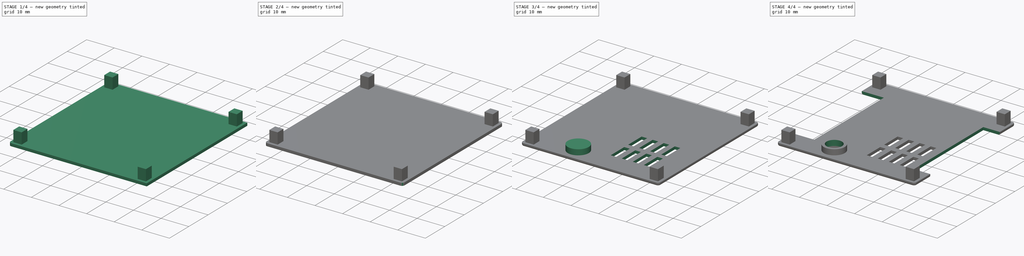
[diagram: build sequence overview — one tinted view per stage of 4, left to right]
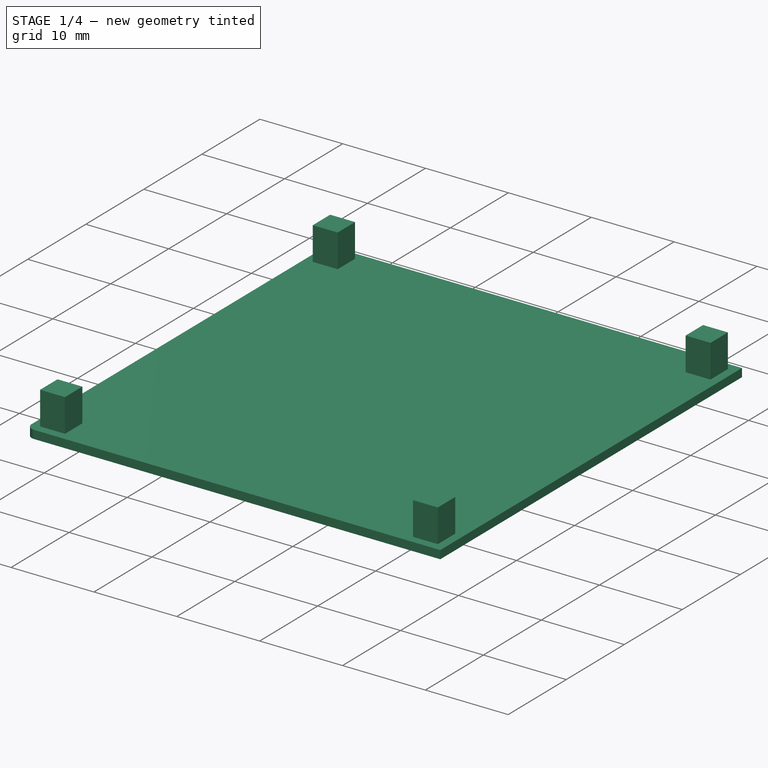
[diagram: stage 1 of 4 — iso view after this stage's code; geometry added in this stage tinted green]
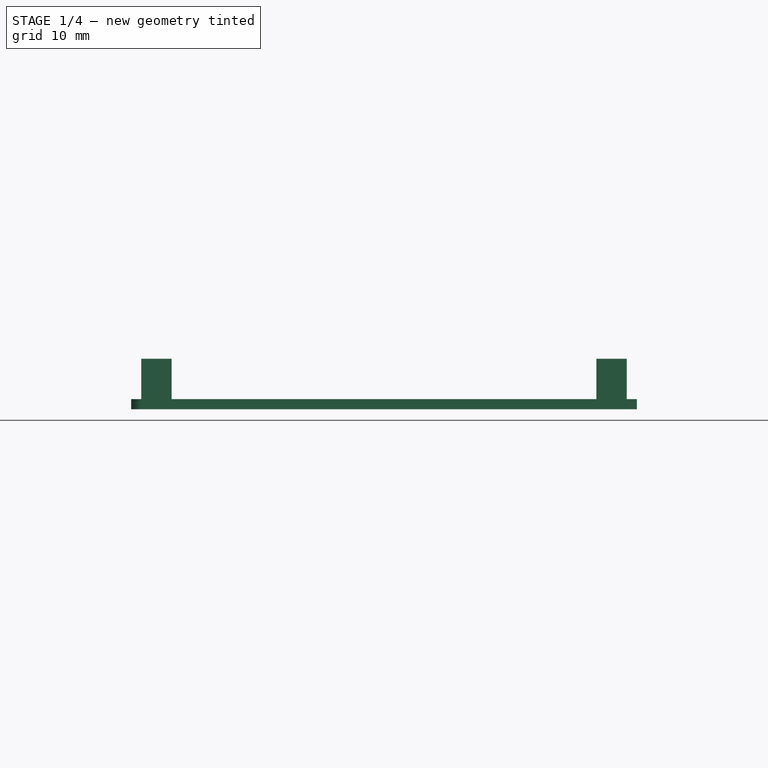
[diagram: stage 1 of 4 — front view after this stage's code; geometry added in this stage tinted green]
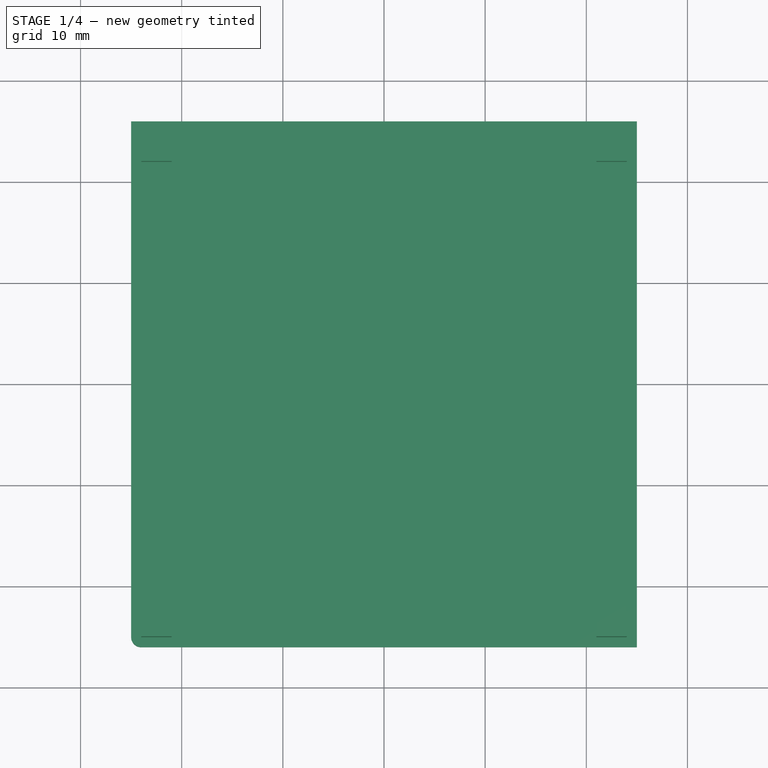
[diagram: stage 1 of 4 — top view after this stage's code; geometry added in this stage tinted green]
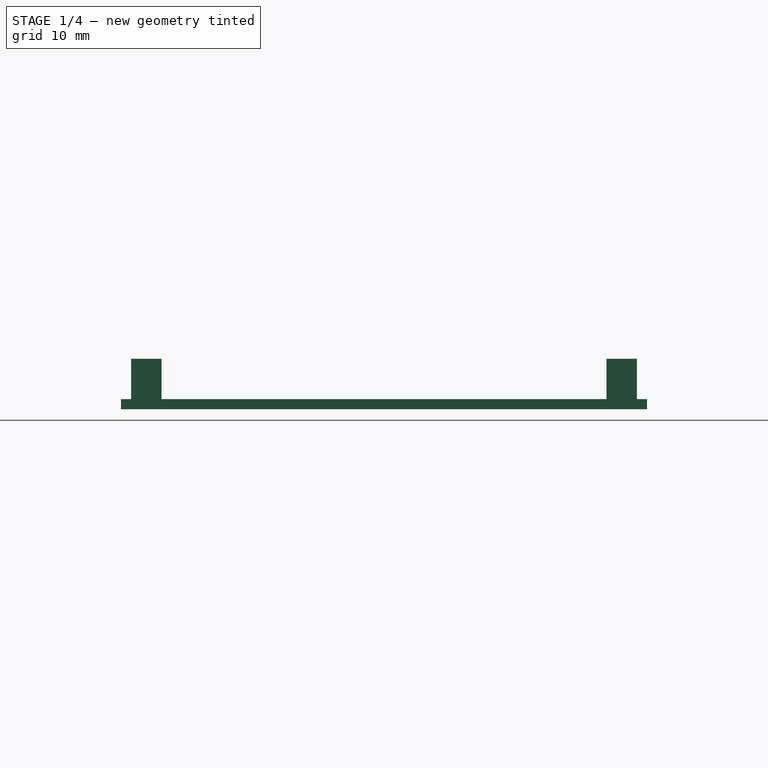
[diagram: stage 1 of 4 — right view after this stage's code; geometry added in this stage tinted green]
FCSTD DOCUMENT  (FreeCAD 0.18R16117 (Git))
Label: Orange Pi Zero Top
License: All rights reserved
LicenseURL: http://en.wikipedia.org/wiki/All_rights_reserved
objects: Sketcher::SketchObject×8, PartDesign::Fillet×5, PartDesign::Pocket×5, PartDesign::Pad×3, PartDesign::Body×1
note: 30 computed .brp shape members not serialized (recipe doc carries the construction recipe); baked Part::Feature solids carry a one-line shape summary decoded from their .brp

FEATURE [Sketcher::SketchObject] Sketch
  MapMode = 5
  Support = -> [XY_Plane]
  sketch-geometry (4):
    g0: LineSegment StartX=-25 StartY=26 StartZ=0 EndX=25 EndY=26 EndZ=0
    g1: LineSegment StartX=25 StartY=26 StartZ=0 EndX=25 EndY=-26 EndZ=0
    g2: LineSegment StartX=25 StartY=-26 StartZ=0 EndX=-25 EndY=-26 EndZ=0
    g3: LineSegment StartX=-25 StartY=-26 StartZ=0 EndX=-25 EndY=26 EndZ=0
  constraints (12):
    c: Coincident(g0,g1)
    c: Coincident(g1,g2)
    c: Coincident(g2,g3)
    c: Coincident(g3,g0)
    c: Horizontal(g0)
    c: Horizontal(g2)
    c: Vertical(g1)
    c: Vertical(g3)
    c: Distance(g0) = 50
    c: Distance(g3) = 52
    c: DistanceX(g2,g-1) = 25
    c: DistanceY(g-1,g0) = 26
FEATURE [PartDesign::Pad] Pad
  Length = 1
  Length2 = 100
  Profile = -> Sketch
  Type = 0
FEATURE [Sketcher::SketchObject] Sketch001
  ExternalGeometry = -> [Pad]
  MapMode = 5
  Placement = pos=(0,0,1) rot=(0,0,1;0rad)
  Support = -> [Pad]
  sketch-geometry (16):
    g0: LineSegment StartX=-24 StartY=25 StartZ=0 EndX=-21 EndY=25 EndZ=0
    g1: LineSegment StartX=-21 StartY=25 StartZ=0 EndX=-21 EndY=22 EndZ=0
    g2: LineSegment StartX=-21 StartY=22 StartZ=0 EndX=-24 EndY=22 EndZ=0
    g3: LineSegment StartX=-24 StartY=22 StartZ=0 EndX=-24 EndY=25 EndZ=0
    g4: LineSegment StartX=21 StartY=25 StartZ=0 EndX=24 EndY=25 EndZ=0
    g5: LineSegment StartX=24 StartY=25 StartZ=0 EndX=24 EndY=22 EndZ=0
    g6: LineSegment StartX=24 StartY=22 StartZ=0 EndX=21 EndY=22 EndZ=0
    g7: LineSegment StartX=21 StartY=22 StartZ=0 EndX=21 EndY=25 EndZ=0
    g8: LineSegment StartX=-24 StartY=-22 StartZ=0 EndX=-21 EndY=-22 EndZ=0
    g9: LineSegment StartX=-21 StartY=-22 StartZ=0 EndX=-21 EndY=-25 EndZ=0
    g10: LineSegment StartX=-21 StartY=-25 StartZ=0 EndX=-24 EndY=-25 EndZ=0
    g11: LineSegment StartX=-24 StartY=-25 StartZ=0 EndX=-24 EndY=-22 EndZ=0
    g12: LineSegment StartX=21 StartY=-22 StartZ=0 EndX=24 EndY=-22 EndZ=0
    g13: LineSegment StartX=24 StartY=-22 StartZ=0 EndX=24 EndY=-25 EndZ=0
    g14: LineSegment StartX=24 StartY=-25 StartZ=0 EndX=21 EndY=-25 EndZ=0
    g15: LineSegment StartX=21 StartY=-25 StartZ=0 EndX=21 EndY=-22 EndZ=0
  constraints (48):
    c: Coincident(g0,g1)
    c: Coincident(g1,g2)
    c: Coincident(g2,g3)
    c: Coincident(g3,g0)
    c: Horizontal(g0)
    c: Horizontal(g2)
    c: Vertical(g1)
    c: Vertical(g3)
    c: Distance(g0) = 3
    c: Distance(g3) = 3
    c: DistanceX(g-4,g0) = 1
    c: DistanceY(g0,g-4) = 1
    c: Coincident(g4,g5)
    c: Coincident(g5,g6)
    c: Coincident(g6,g7)
    c: Coincident(g7,g4)
    c: Horizontal(g4)
    c: Horizontal(g6)
    c: Vertical(g5)
    c: Vertical(g7)
    c: Distance(g4) = 3
    c: Distance(g7) = 3
    c: DistanceX(g4,g-5) = 1
    c: DistanceY(g4,g-5) = 1
    c: Coincident(g8,g9)
    c: Coincident(g9,g10)
    c: Coincident(g10,g11)
    c: Coincident(g11,g8)
    c: Horizontal(g8)
    c: Horizontal(g10)
    c: Vertical(g9)
    c: Vertical(g11)
    c: Distance(g8) = 3
    c: Distance(g11) = 3
    c: DistanceX(g-6,g10) = 1
    c: DistanceY(g-6,g10) = 1
    c: Coincident(g12,g13)
    c: Coincident(g13,g14)
    c: Coincident(g14,g15)
    c: Coincident(g15,g12)
    c: Horizontal(g12)
    c: Horizontal(g14)
    c: Vertical(g13)
    c: Vertical(g15)
    c: Distance(g12) = 3
    c: Distance(g15) = 3
    c: DistanceX(g13,g-6) = 1
    c: DistanceY(g-6,g13) = 1
FEATURE [PartDesign::Pad] Pad001
  BaseFeature = -> Pad
  Length = 4
  Length2 = 100
  Profile = -> Sketch001
  Type = 0
FEATURE [PartDesign::Fillet] Fillet
  Base = -> Pad001 [Edge5]
  BaseFeature = -> Pad001
  Radius = 1
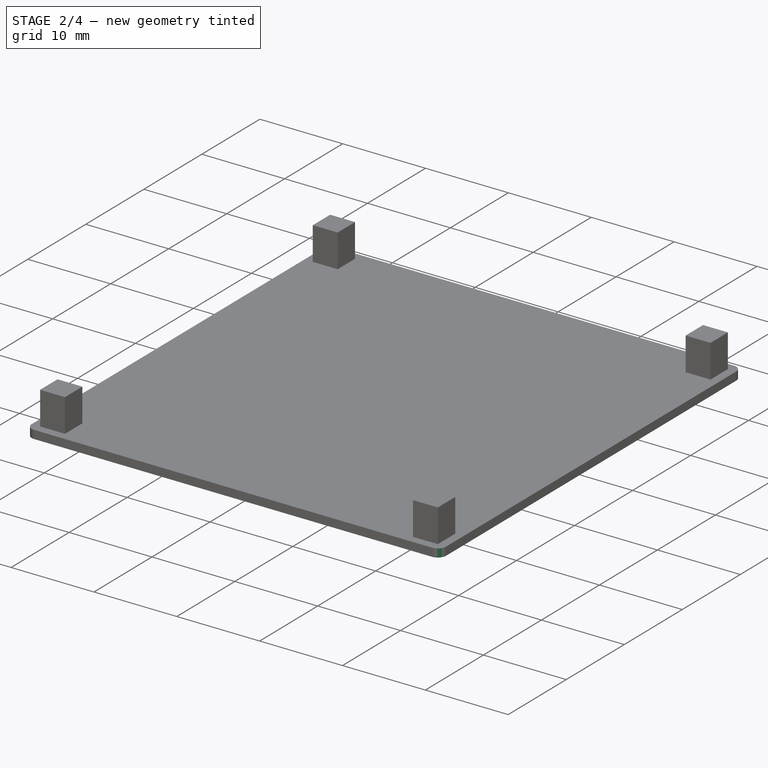
[diagram: stage 2 of 4 — iso view after this stage's code; geometry added in this stage tinted green]
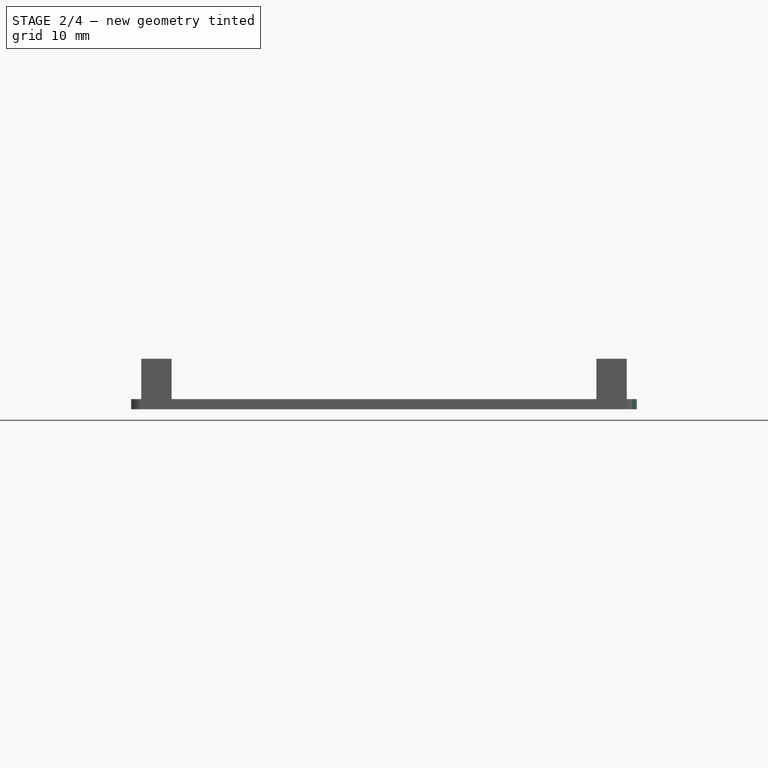
[diagram: stage 2 of 4 — front view after this stage's code; geometry added in this stage tinted green]
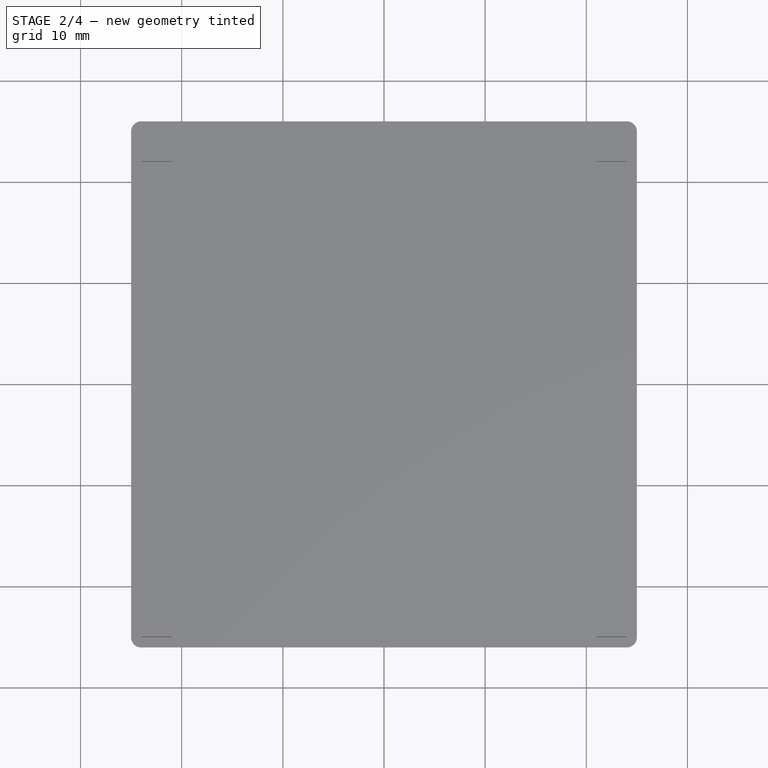
[diagram: stage 2 of 4 — top view after this stage's code; geometry added in this stage tinted green]
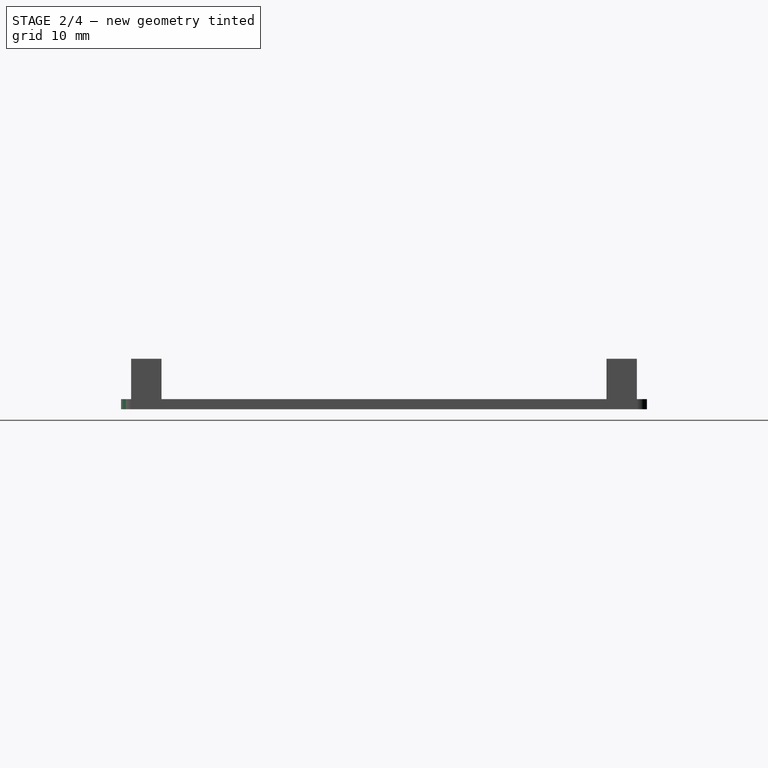
[diagram: stage 2 of 4 — right view after this stage's code; geometry added in this stage tinted green]
FEATURE [PartDesign::Fillet] Fillet001
  Base = -> Fillet [Edge31]
  BaseFeature = -> Fillet
  Radius = 1
FEATURE [PartDesign::Fillet] Fillet002
  Base = -> Fillet001 [Edge16]
  BaseFeature = -> Fillet001
  Radius = 1
FEATURE [PartDesign::Fillet] Fillet003
  Base = -> Fillet002 [Edge15]
  BaseFeature = -> Fillet002
  Radius = 1
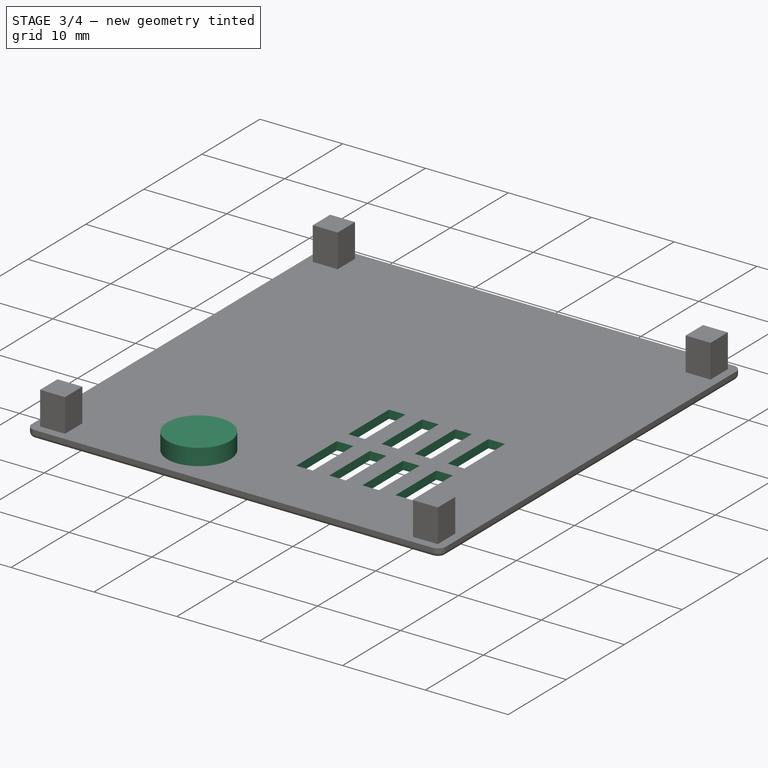
[diagram: stage 3 of 4 — iso view after this stage's code; geometry added in this stage tinted green]
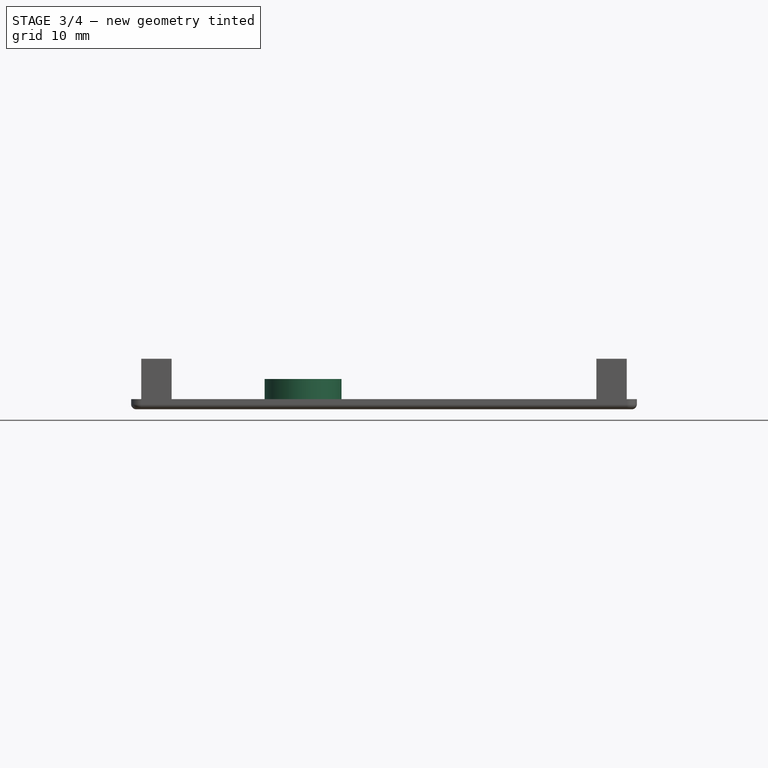
[diagram: stage 3 of 4 — front view after this stage's code; geometry added in this stage tinted green]
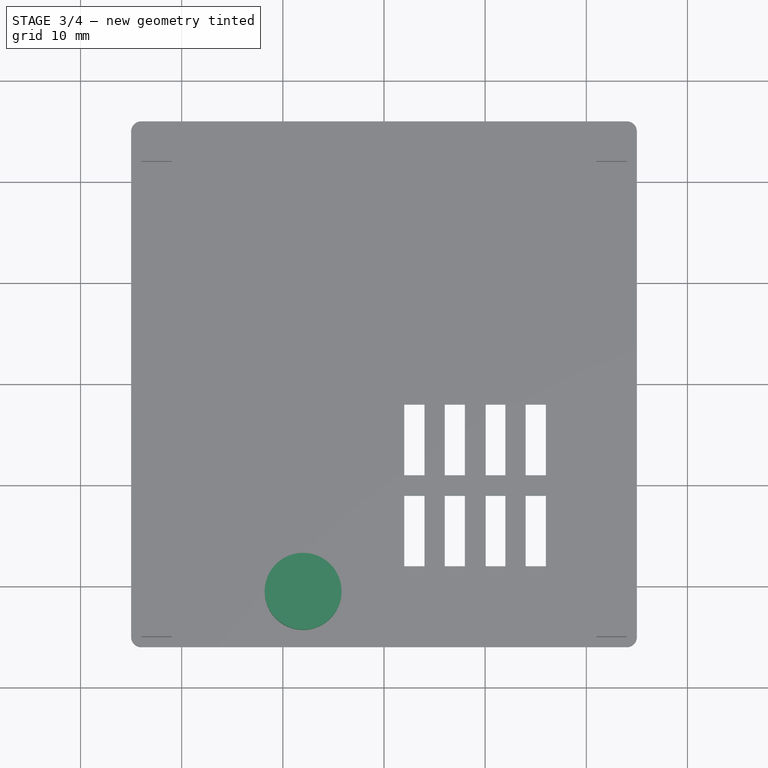
[diagram: stage 3 of 4 — top view after this stage's code; geometry added in this stage tinted green]
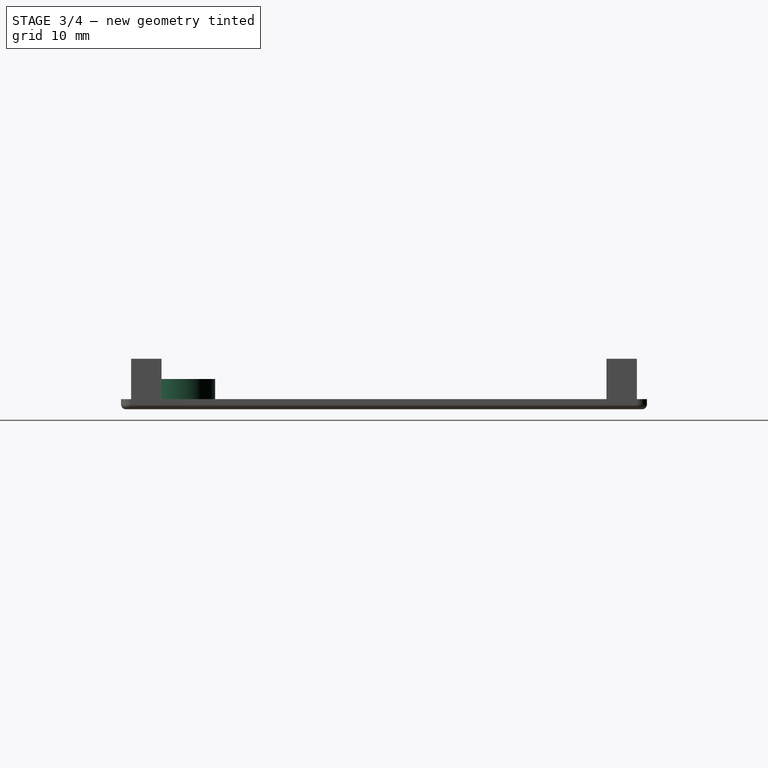
[diagram: stage 3 of 4 — right view after this stage's code; geometry added in this stage tinted green]
FEATURE [Sketcher::SketchObject] Sketch002
  ExternalGeometry = -> [Fillet003]
  MapMode = 5
  Placement = pos=(0,0,0) rot=(1,0,0;3.14159rad)
  Support = -> [Fillet003]
  sketch-geometry (1):
    g0: Circle CenterX=-8 CenterY=20.5 CenterZ=0 NormalX=0 NormalY=0 NormalZ=1 AngleXU=0 Radius=2.75
  constraints (3):
    c: DistanceX(g-3,g0) = 17
    c: Diameter(g0) = 5.5
    c: DistanceY(g0,g-4) = 5.5
FEATURE [PartDesign::Pocket] Pocket
  BaseFeature = -> Fillet003
  Length = 1
  Length2 = 100
  Profile = -> Sketch002
  Type = 0
FEATURE [Sketcher::SketchObject] Sketch003
  ExternalGeometry = -> [Pocket]
  MapMode = 5
  Placement = pos=(0,0,1) rot=(0,0,1;0rad)
  Support = -> [Pocket]
  sketch-geometry (32):
    g0: LineSegment StartX=14 StartY=-11 StartZ=0 EndX=16 EndY=-11 EndZ=0
    g1: LineSegment StartX=16 StartY=-11 StartZ=0 EndX=16 EndY=-18 EndZ=0
    g2: LineSegment StartX=16 StartY=-18 StartZ=0 EndX=14 EndY=-18 EndZ=0
    g3: LineSegment StartX=14 StartY=-18 StartZ=0 EndX=14 EndY=-11 EndZ=0
    g4: LineSegment StartX=14 StartY=-2 StartZ=0 EndX=16 EndY=-2 EndZ=0
    g5: LineSegment StartX=16 StartY=-2 StartZ=0 EndX=16 EndY=-9 EndZ=0
    g6: LineSegment StartX=16 StartY=-9 StartZ=0 EndX=14 EndY=-9 EndZ=0
    g7: LineSegment StartX=14 StartY=-9 StartZ=0 EndX=14 EndY=-2 EndZ=0
    g8: LineSegment StartX=10 StartY=-2 StartZ=0 EndX=12 EndY=-2 EndZ=0
    g9: LineSegment StartX=12 StartY=-2 StartZ=0 EndX=12 EndY=-9 EndZ=0
    g10: LineSegment StartX=12 StartY=-9 StartZ=0 EndX=10 EndY=-9 EndZ=0
    g11: LineSegment StartX=10 StartY=-9 StartZ=0 EndX=10 EndY=-2 EndZ=0
    g12: LineSegment StartX=10 StartY=-11 StartZ=0 EndX=12 EndY=-11 EndZ=0
    g13: LineSegment StartX=12 StartY=-11 StartZ=0 EndX=12 EndY=-18 EndZ=0
    g14: LineSegment StartX=12 StartY=-18 StartZ=0 EndX=10 EndY=-18 EndZ=0
    g15: LineSegment StartX=10 StartY=-18 StartZ=0 EndX=10 EndY=-11 EndZ=0
    g16: LineSegment StartX=6 StartY=-2 StartZ=0 EndX=8 EndY=-2 EndZ=0
    g17: LineSegment StartX=8 StartY=-2 StartZ=0 EndX=8 EndY=-9 EndZ=0
    g18: LineSegment StartX=8 StartY=-9 StartZ=0 EndX=6 EndY=-9 EndZ=0
    g19: LineSegment StartX=6 StartY=-9 StartZ=0 EndX=6 EndY=-2 EndZ=0
    g20: LineSegment StartX=6 StartY=-11 StartZ=0 EndX=8 EndY=-11 EndZ=0
    g21: LineSegment StartX=8 StartY=-11 StartZ=0 EndX=8 EndY=-18 EndZ=0
    g22: LineSegment StartX=8 StartY=-18 StartZ=0 EndX=6 EndY=-18 EndZ=0
    g23: LineSegment StartX=6 StartY=-18 StartZ=0 EndX=6 EndY=-11 EndZ=0
    g24: LineSegment StartX=2 StartY=-2 StartZ=0 EndX=4 EndY=-2 EndZ=0
    g25: LineSegment StartX=4 StartY=-2 StartZ=0 EndX=4 EndY=-9 EndZ=0
    g26: LineSegment StartX=4 StartY=-9 StartZ=0 EndX=2 EndY=-9 EndZ=0
    g27: LineSegment StartX=2 StartY=-9 StartZ=0 EndX=2 EndY=-2 EndZ=0
    g28: LineSegment StartX=2 StartY=-11 StartZ=0 EndX=4 EndY=-11 EndZ=0
    g29: LineSegment StartX=4 StartY=-11 StartZ=0 EndX=4 EndY=-18 EndZ=0
    g30: LineSegment StartX=4 StartY=-18 StartZ=0 EndX=2 EndY=-18 EndZ=0
    g31: LineSegment StartX=2 StartY=-18 StartZ=0 EndX=2 EndY=-11 EndZ=0
  constraints (96):
    c: Coincident(g0,g1)
    c: Coincident(g1,g2)
    c: Coincident(g2,g3)
    c: Coincident(g3,g0)
    c: Horizontal(g0)
    c: Horizontal(g2)
    c: Vertical(g1)
    c: Vertical(g3)
    c: DistanceY(g-4,g1) = 8
    c: DistanceX(g1,g-3) = 9
    c: DistanceY(g1,g1) = 7
    c: DistanceX(g0,g0) = 2
    c: Coincident(g4,g5)
    c: Coincident(g5,g6)
    c: Coincident(g6,g7)
    c: Coincident(g7,g4)
    c: Horizontal(g4)
    c: Horizontal(g6)
    c: Vertical(g5)
    c: Vertical(g7)
    c: Equal(g1,g5)
    c: Equal(g4,g0)
    c: DistanceX(g5,g0) = 0
    c: DistanceY(g0,g5) = 2
    c: Coincident(g8,g9)
    c: Coincident(g9,g10)
    c: Coincident(g10,g11)
    c: Coincident(g11,g8)
    c: Horizontal(g8)
    c: Horizontal(g10)
    c: Vertical(g9)
    c: Vertical(g11)
    c: Coincident(g12,g13)
    c: Coincident(g13,g14)
    c: Coincident(g14,g15)
    c: Coincident(g15,g12)
    c: Horizontal(g12)
    c: Horizontal(g14)
    c: Vertical(g13)
    c: Vertical(g15)
    c: Coincident(g16,g17)
    c: Coincident(g17,g18)
    c: Coincident(g18,g19)
    c: Coincident(g19,g16)
    c: Horizontal(g16)
    c: Horizontal(g18)
    c: Vertical(g17)
    c: Vertical(g19)
    c: Coincident(g20,g21)
    c: Coincident(g21,g22)
    c: Coincident(g22,g23)
    c: Coincident(g23,g20)
    c: Horizontal(g20)
    c: Horizontal(g22)
    c: Vertical(g21)
    c: Vertical(g23)
    c: Coincident(g24,g25)
    c: Coincident(g25,g26)
    c: Coincident(g26,g27)
    c: Coincident(g27,g24)
    c: Horizontal(g24)
    c: Horizontal(g26)
    c: Vertical(g25)
    c: Vertical(g27)
    c: Coincident(g28,g29)
    c: Coincident(g29,g30)
    c: Coincident(g30,g31)
    c: Coincident(g31,g28)
    c: Horizontal(g28)
    c: Horizontal(g30)
    c: Vertical(g29)
    c: Vertical(g31)
    c: Equal(g24,g16)
    c: Equal(g8,g4)
    c: Equal(g24,g4)
    c: Equal(g0,g12)
    c: Equal(g20,g28)
    c: Equal(g20,g12)
    c: Equal(g7,g9)
    c: Equal(g11,g17)
    c: Equal(g19,g25)
    c: Equal(g3,g13)
    c: Equal(g15,g21)
    c: Equal(g23,g29)
    c: DistanceY(g25,g18) = 0
    c: DistanceY(g17,g10) = 0
    c: DistanceY(g6,g9) = 0
    c: DistanceY(g29,g22) = 0
    c: DistanceY(g21,g14) = 0
    c: DistanceY(g13,g2) = 0
    c: DistanceX(g8,g4) = 2
    c: DistanceX(g16,g8) = 2
    c: DistanceX(g24,g16) = 2
    c: DistanceX(g12,g0) = 2
    c: DistanceX(g20,g12) = 2
    c: DistanceX(g28,g20) = 2
FEATURE [PartDesign::Pocket] Pocket001
  BaseFeature = -> Pocket
  Length = 1
  Length2 = 100
  Profile = -> Sketch003
  Type = 0
FEATURE [PartDesign::Fillet] Fillet004
  Base = -> Pocket001 [Edge8,Edge4,Edge5,Edge1]
  BaseFeature = -> Pocket001
  Radius = 0.5
FEATURE [Sketcher::SketchObject] Sketch004
  ExternalGeometry = -> [Fillet004]
  MapMode = 5
  Placement = pos=(0,0,1) rot=(0,0,1;0rad)
  Support = -> [Fillet004]
  sketch-geometry (1):
    g0: Circle CenterX=-8 CenterY=-20.5 CenterZ=0 NormalX=0 NormalY=0 NormalZ=1 AngleXU=0 Radius=3.8
  constraints (2):
    c: Coincident(g0,g-3)
    c: Radius(g0) = 3.8
FEATURE [PartDesign::Pad] Pad002
  BaseFeature = -> Fillet004
  Length = 2
  Length2 = 100
  Profile = -> Sketch004
  Type = 0
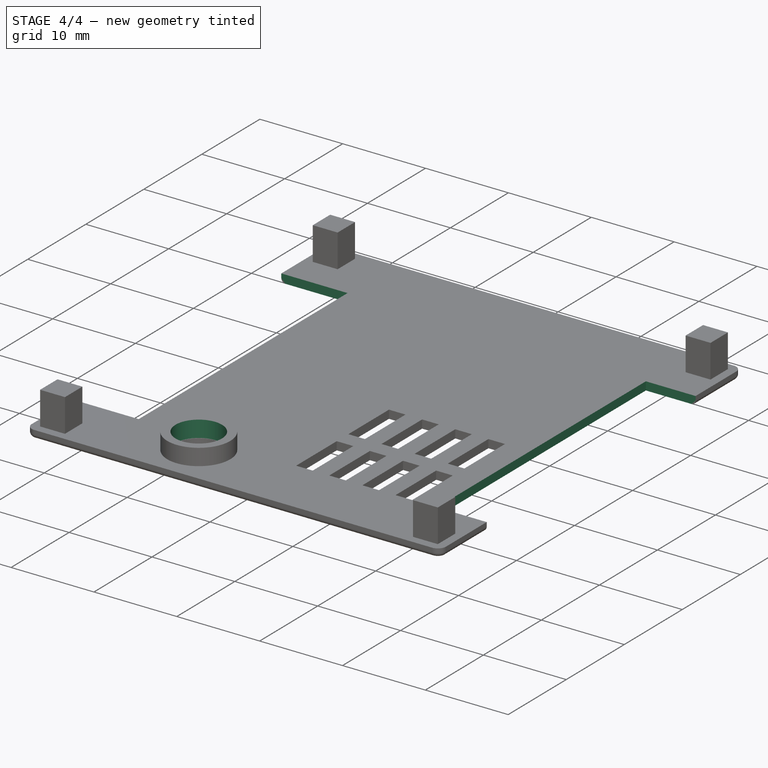
[diagram: stage 4 of 4 — iso view after this stage's code; geometry added in this stage tinted green]
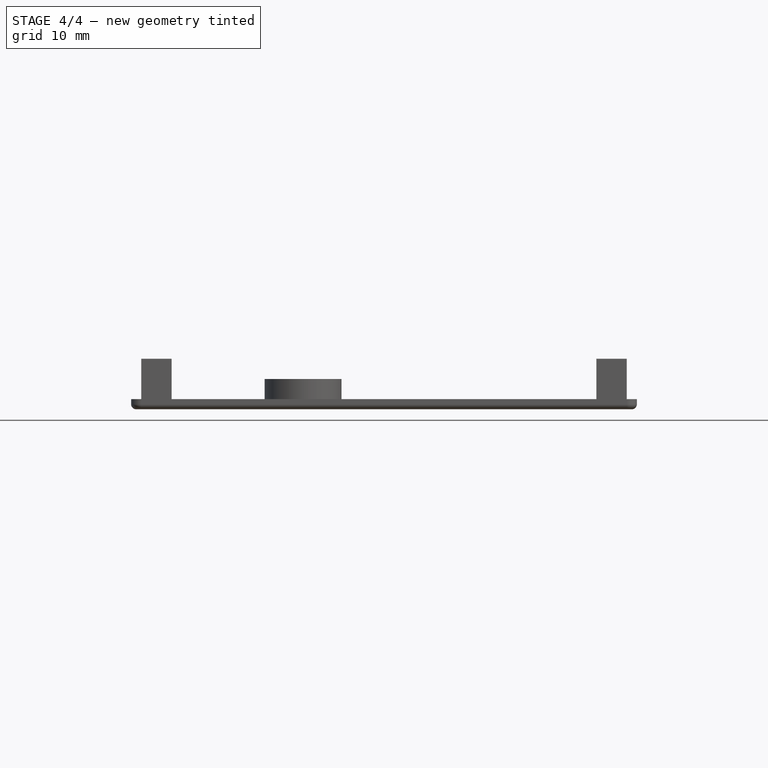
[diagram: stage 4 of 4 — front view after this stage's code; geometry added in this stage tinted green]
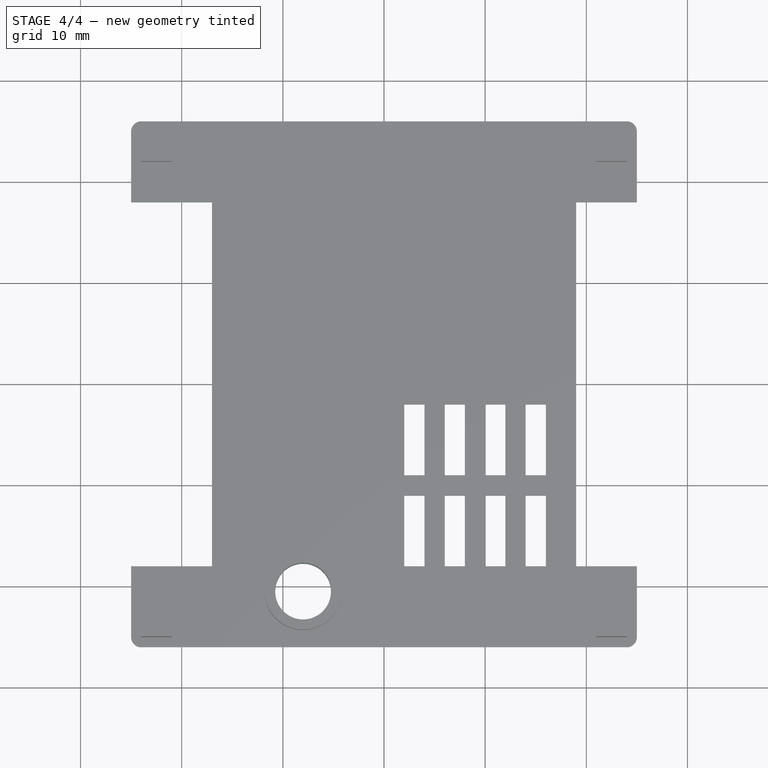
[diagram: stage 4 of 4 — top view after this stage's code; geometry added in this stage tinted green]
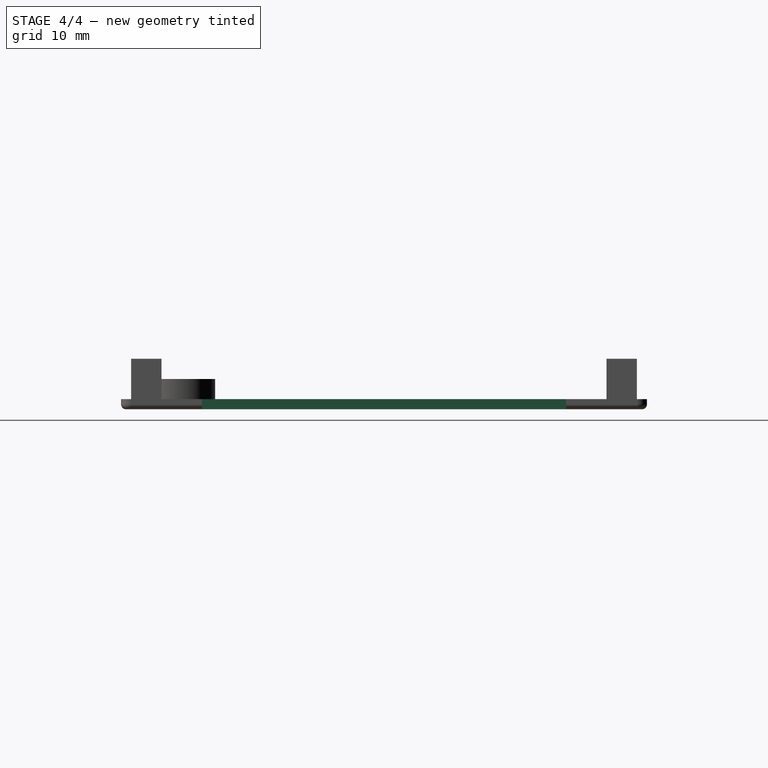
[diagram: stage 4 of 4 — right view after this stage's code; geometry added in this stage tinted green]
FEATURE [Sketcher::SketchObject] Sketch005
  ExternalGeometry = -> [Pad002]
  MapMode = 5
  Placement = pos=(0,0,3) rot=(0,0,1;0rad)
  Support = -> [Pad002]
  sketch-geometry (1):
    g0: Circle CenterX=-8 CenterY=-20.5 CenterZ=0 NormalX=0 NormalY=0 NormalZ=1 AngleXU=0 Radius=2.8
  constraints (2):
    c: Radius(g0) = 2.8
    c: Coincident(g0,g-3)
FEATURE [PartDesign::Pocket] Pocket002
  BaseFeature = -> Pad002
  Length = 2
  Length2 = 100
  Profile = -> Sketch005
  Type = 0
FEATURE [Sketcher::SketchObject] Sketch006
  ExternalGeometry = -> [Pocket002]
  MapMode = 5
  Placement = pos=(0,0,1) rot=(0,0,1;0rad)
  Support = -> [Pocket002]
  sketch-geometry (4):
    g0: LineSegment StartX=-25 StartY=18 StartZ=0 EndX=-17 EndY=18 EndZ=0
    g1: LineSegment StartX=-17 StartY=18 StartZ=0 EndX=-17 EndY=-18 EndZ=0
    g2: LineSegment StartX=-17 StartY=-18 StartZ=0 EndX=-25 EndY=-18 EndZ=0
    g3: LineSegment StartX=-25 StartY=-18 StartZ=0 EndX=-25 EndY=18 EndZ=0
  constraints (12):
    c: Coincident(g0,g1)
    c: Coincident(g1,g2)
    c: Coincident(g2,g3)
    c: Coincident(g3,g0)
    c: Horizontal(g0)
    c: Horizontal(g2)
    c: Vertical(g1)
    c: Vertical(g3)
    c: DistanceY(g1,g1) = 36
    c: DistanceX(g0,g0) = 8
    c: DistanceY(g-3,g2) = 8
    c: DistanceX(g-4,g2) = 0
FEATURE [PartDesign::Pocket] Pocket003
  BaseFeature = -> Pocket002
  Length = 1
  Length2 = 100
  Profile = -> Sketch006
  Type = 0
FEATURE [Sketcher::SketchObject] Sketch007
  ExternalGeometry = -> [Pocket003]
  MapMode = 5
  Placement = pos=(0,0,1) rot=(0,0,1;0rad)
  Support = -> [Pocket003]
  sketch-geometry (4):
    g0: LineSegment StartX=19 StartY=18 StartZ=0 EndX=25 EndY=18 EndZ=0
    g1: LineSegment StartX=25 StartY=18 StartZ=0 EndX=25 EndY=-18 EndZ=0
    g2: LineSegment StartX=25 StartY=-18 StartZ=0 EndX=19 EndY=-18 EndZ=0
    g3: LineSegment StartX=19 StartY=-18 StartZ=0 EndX=19 EndY=18 EndZ=0
  constraints (12):
    c: Coincident(g0,g1)
    c: Coincident(g1,g2)
    c: Coincident(g2,g3)
    c: Coincident(g3,g0)
    c: Horizontal(g0)
    c: Horizontal(g2)
    c: Vertical(g1)
    c: Vertical(g3)
    c: PointOnObject(g1,g-4)
    c: DistanceY(g3,g3) = 36
    c: DistanceY(g-3,g1) = 8
    c: DistanceX(g0,g0) = 6
FEATURE [PartDesign::Pocket] Pocket004
  BaseFeature = -> Pocket003
  Length = 1
  Length2 = 100
  Profile = -> Sketch007
  Type = 0
FEATURE [PartDesign::Body] Body
  Group = -> [Sketch,Pad,Sketch001,Pad001,Fillet,Fillet001,Fillet002,Fillet003,Sketch002,Pocket,Sketch003,Pocket001,Fillet004,Sketch004,Pad002,Sketch005,Pocket002,Sketch006,Pocket003,Sketch007,Pocket004]
  Origin = -> Origin
  Tip = -> Pocket004
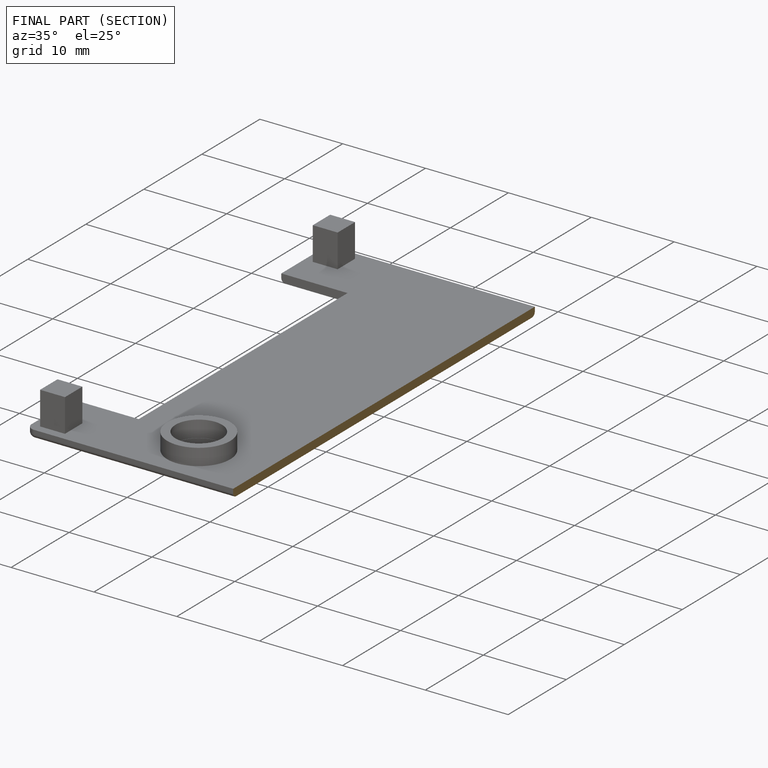
[diagram: finished part — half-section view (interior)]
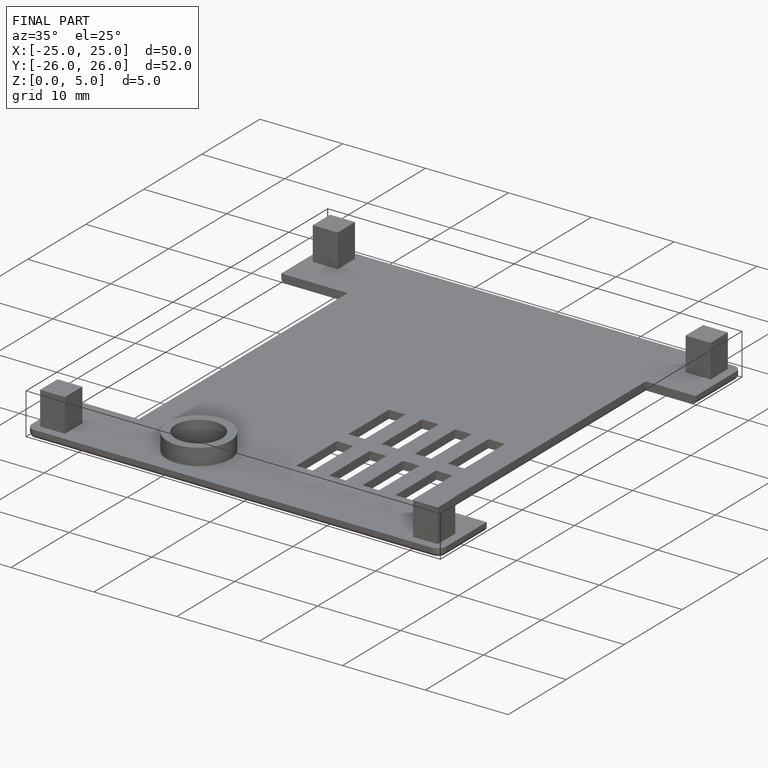
[diagram: finished part — iso view with bounding-box wireframe]
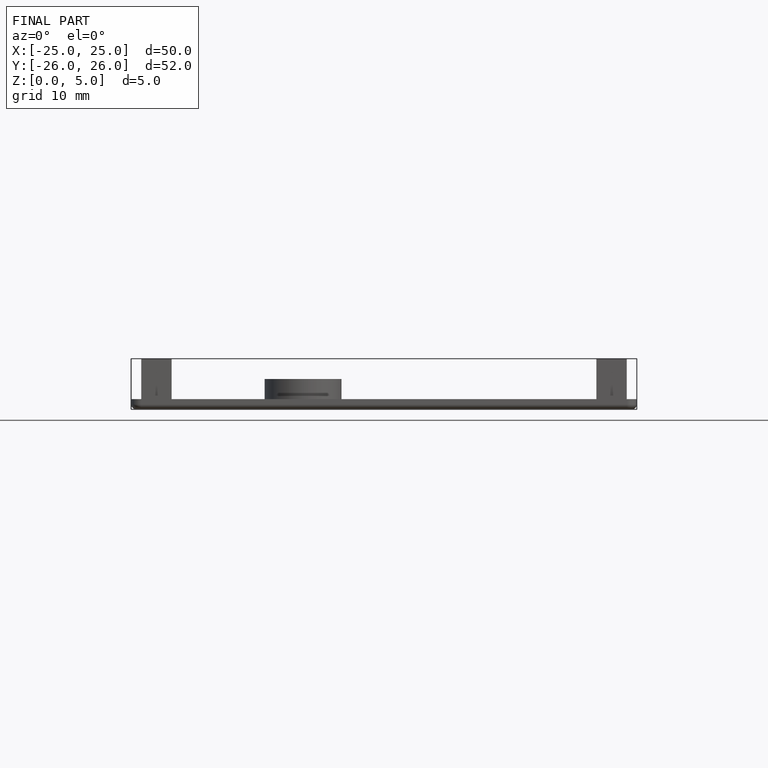
[diagram: finished part — front view with bounding-box wireframe]
